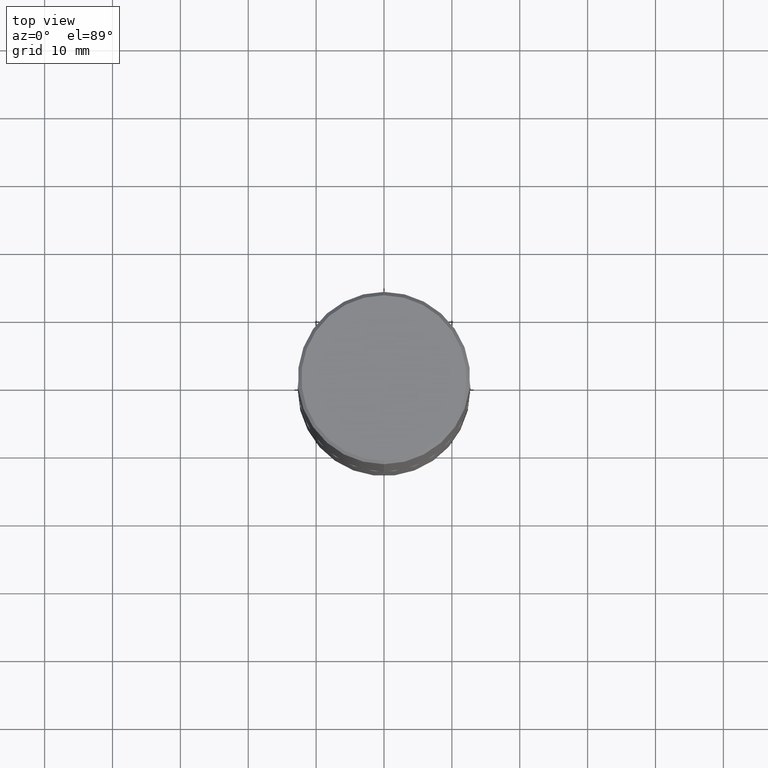
[diagram: clean part render]
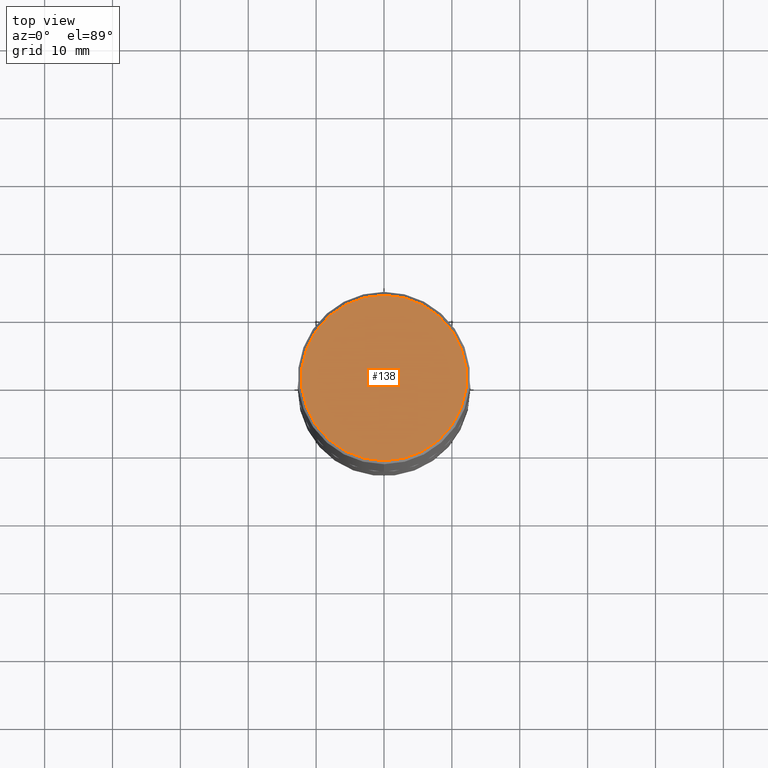
[diagram: same view with one face highlighted and labeled with its STEP entity id]
A machine part, top view. The second image highlights one B-rep face of the part: STEP entity #138.
In plain terms, the highlighted planar face has unit normal (0, -0, -1).
Its self-contained STEP definition (entity closure, byte-faithful):
#15 = CARTESIAN_POINT ( 'NONE',  ( -3.439847008941952136E-45, 4.909920141751372761E-31, 1.406439127464440065E-16 ) ) ;
#29 = EDGE_CURVE ( 'NONE', #271, #177, #183, .T. ) ;
#56 = CIRCLE ( 'NONE', #204, 0.4799999999999998157 ) ;
#63 = ORIENTED_EDGE ( 'NONE', *, *, #176, .T. ) ;
#83 = DIRECTION ( 'NONE',  ( -6.982962677686265922E-15, -1.000000000000000000, 3.491029256703833834E-15 ) ) ;
#98 = CARTESIAN_POINT ( 'NONE',  ( 3.421651712066270057E-15, 0.4799999999999998157, -1.535050130471395610E-15 ) ) ;
#109 = AXIS2_PLACEMENT_3D ( 'NONE', #186, #376, #189 ) ;
#138 = ADVANCED_FACE ( 'NONE', ( #353 ), #285, .F. ) ;
#146 = DIRECTION ( 'NONE',  ( -6.982962677686265922E-15, -1.000000000000000000, 3.491029256703833834E-15 ) ) ;
#171 = DIRECTION ( 'NONE',  ( -2.445784493455742698E-29, 3.491029256703833834E-15, 1.000000000000000000 ) ) ;
#176 = EDGE_CURVE ( 'NONE', #177, #271, #56, .T. ) ;
#177 = VERTEX_POINT ( 'NONE', #223 ) ;
#183 = CIRCLE ( 'NONE', #267, 0.4799999999999998157 ) ;
#186 = CARTESIAN_POINT ( 'NONE',  ( 3.351822085289406364E-15, 0.4799999999999998157, -1.605372086844617625E-15 ) ) ;
#189 = DIRECTION ( 'NONE',  ( 6.982962677686265922E-15, 1.000000000000000000, -3.491029256703833440E-15 ) ) ;
#204 = AXIS2_PLACEMENT_3D ( 'NONE', #402, #253, #83 ) ;
#223 = CARTESIAN_POINT ( 'NONE',  ( -3.361644018908049661E-15, -0.4799999999999998157, 1.816337955964283672E-15 ) ) ;
#229 = EDGE_LOOP ( 'NONE', ( #273, #63 ) ) ;
#253 = DIRECTION ( 'NONE',  ( -2.445784493455742698E-29, 3.491029256703833834E-15, 1.000000000000000000 ) ) ;
#267 = AXIS2_PLACEMENT_3D ( 'NONE', #15, #171, #146 ) ;
#271 = VERTEX_POINT ( 'NONE', #98 ) ;
#273 = ORIENTED_EDGE ( 'NONE', *, *, #29, .T. ) ;
#285 = PLANE ( 'NONE',  #109 ) ;
#353 = FACE_OUTER_BOUND ( 'NONE', #229, .T. ) ;
#376 = DIRECTION ( 'NONE',  ( 2.445784493455742698E-29, -3.491029256703833440E-15, -1.000000000000000000 ) ) ;
#402 = CARTESIAN_POINT ( 'NONE',  ( -3.439847008941952136E-45, 4.909920141751372761E-31, 1.406439127464440065E-16 ) ) ;